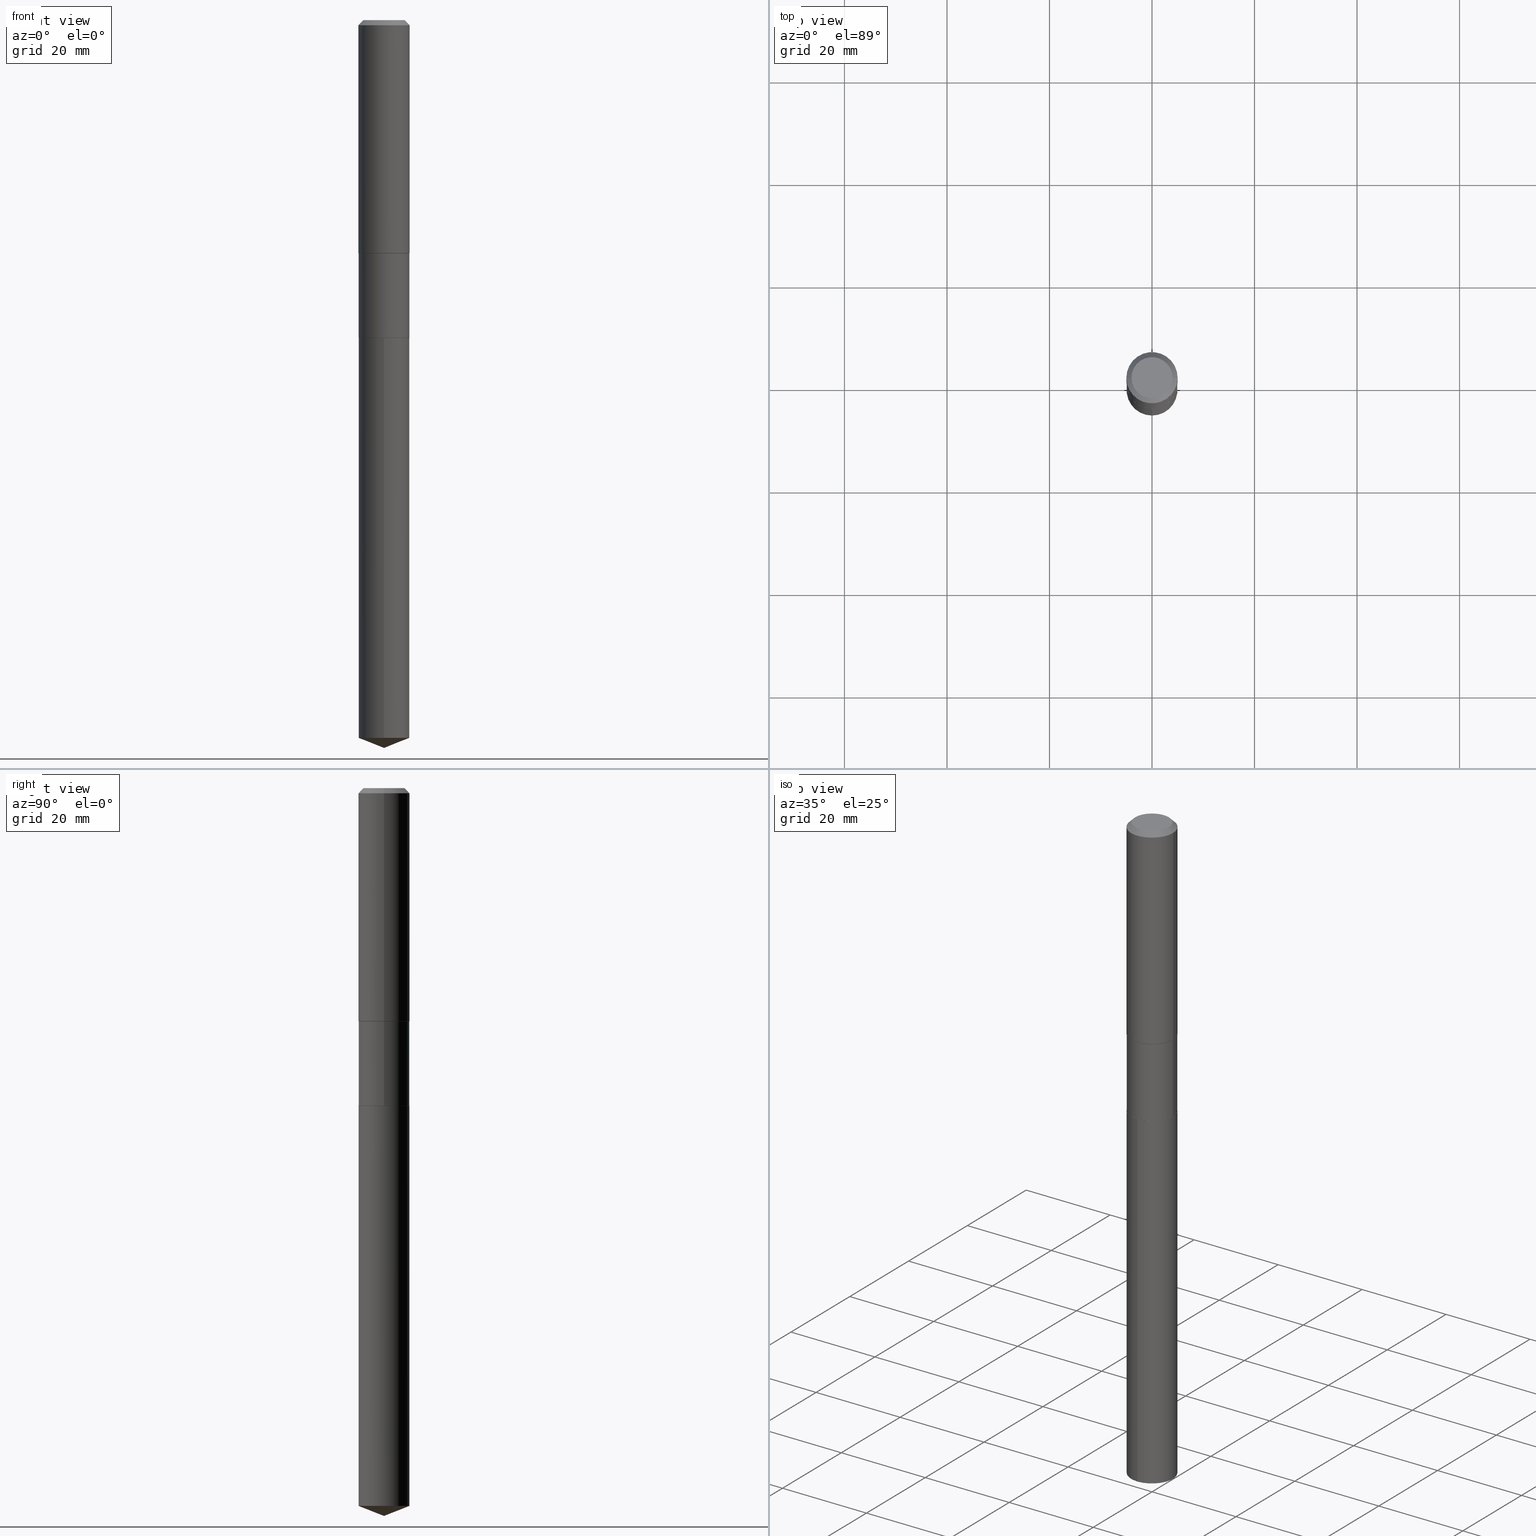
[diagram: canonical four-view strip — front | top / right | iso, engineering-drawing reading convention]
A machine part, canonical four-view strip (front | top / right | iso — engineering-drawing reading convention). The complete STEP part file that produces these views, byte-faithful:
ISO-10303-21;
HEADER;
FILE_DESCRIPTION (( 'STEP AP203' ),
    '1' );
FILE_NAME ('66675.STEP',
    '2024-04-25T03:26:49',
    ( '' ),
    ( '' ),
    'SwSTEP 2.0',
    'SolidWorks 2023',
    '' );
FILE_SCHEMA (( 'CONFIG_CONTROL_DESIGN' ));
ENDSEC;

DATA;
#1 = CARTESIAN_POINT ( 'NONE',  ( 5.969144809017297917E-29, -8.522356799982231388E-15, -2.440899999999999181 ) ) ;
#2 = CARTESIAN_POINT ( 'NONE',  ( 5.969144809017297917E-29, -8.522356799982231388E-15, -2.440899999999999181 ) ) ;
#3 = AXIS2_PLACEMENT_3D ( 'NONE', #121, #6, #266 ) ;
#4 = DIRECTION ( 'NONE',  ( 1.000000000000000000, -6.982962677686265922E-15, 0.000000000000000000 ) ) ;
#5 = EDGE_CURVE ( 'NONE', #466, #269, #241, .T. ) ;
#6 = DIRECTION ( 'NONE',  ( -2.445468806185136597E-29, 3.491481338843145583E-15, 1.000000000000000000 ) ) ;
#7 = CALENDAR_DATE ( 2024, 24, 4 ) ;
#8 = DATE_TIME_ROLE ( 'classification_date' ) ;
#9 = CIRCLE ( 'NONE', #447, 0.1948999999999999899 ) ;
#10 = PLANE ( 'NONE',  #449 ) ;
#11 = CC_DESIGN_APPROVAL ( #65, ( #277 ) ) ;
#12 = ORIENTED_EDGE ( 'NONE', *, *, #86, .F. ) ;
#13 = EDGE_CURVE ( 'NONE', #390, #365, #26, .T. ) ;
#14 = VERTEX_POINT ( 'NONE', #322 ) ;
#15 = ORIENTED_EDGE ( 'NONE', *, *, #109, .F. ) ;
#16 = CARTESIAN_POINT ( 'NONE',  ( 0.1968500000000000250, -1.487948651171581601E-15, -0.03937000000000024508 ) ) ;
#17 = AXIS2_PLACEMENT_3D ( 'NONE', #1, #152, #259 ) ;
#18 = CIRCLE ( 'NONE', #189, 0.1948999999999999899 ) ;
#19 = APPROVAL_DATE_TIME ( #240, #254 ) ;
#20 = EDGE_CURVE ( 'NONE', #269, #271, #9, .T. ) ;
#21 = ORIENTED_EDGE ( 'NONE', *, *, #282, .F. ) ;
#22 = FACE_OUTER_BOUND ( 'NONE', #210, .T. ) ;
#23 = PRODUCT ( '66675', '66675', '', ( #434 ) ) ;
#24 = VERTEX_POINT ( 'NONE', #358 ) ;
#25 = ORIENTED_EDGE ( 'NONE', *, *, #476, .F. ) ;
#26 = CIRCLE ( 'NONE', #226, 0.1948999999999999067 ) ;
#27 = CARTESIAN_POINT ( 'NONE',  ( 5.967922074614205116E-29, -8.520611059312809095E-15, -2.440399999999999014 ) ) ;
#28 = APPLICATION_PROTOCOL_DEFINITION ( 'international standard', 'config_control_design', 1994, #182 ) ;
#29 = FACE_OUTER_BOUND ( 'NONE', #128, .T. ) ;
#30 = CARTESIAN_POINT ( 'NONE',  ( -9.427742298522567634E-47, 1.346031739168368355E-32, 3.855188123715870730E-18 ) ) ;
#31 = CLOSED_SHELL ( 'NONE', ( #218, #372, #311, #207, #331, #439, #124, #33, #62, #458, #470, #273 ) ) ;
#32 = LOCAL_TIME ( 23, 26, 49.00000000000000000, #177 ) ;
#33 = ADVANCED_FACE ( 'NONE', ( #139 ), #134, .T. ) ;
#34 = DIRECTION ( 'NONE',  ( -2.445468806185136597E-29, 3.491481338843145583E-15, 1.000000000000000000 ) ) ;
#35 = CYLINDRICAL_SURFACE ( 'NONE', #379, 0.1948999999999999344 ) ;
#36 = LINE ( 'NONE', #46, #316 ) ;
#37 = DIRECTION ( 'NONE',  ( 2.445428369358333409E-29, -3.491539246680648506E-15, -1.000000000000000000 ) ) ;
#38 = CARTESIAN_POINT ( 'NONE',  ( 4.381791006922526060E-29, -6.256036262939144736E-15, -1.791799999999999171 ) ) ;
#39 = DIRECTION ( 'NONE',  ( -2.445428369358333970E-29, 3.491539246680648506E-15, 1.000000000000000000 ) ) ;
#40 = AXIS2_PLACEMENT_3D ( 'NONE', #448, #371, #108 ) ;
#41 = VECTOR ( 'NONE', #454, 39.37007874015748143 ) ;
#42 = FACE_OUTER_BOUND ( 'NONE', #386, .T. ) ;
#43 = ORIENTED_EDGE ( 'NONE', *, *, #394, .F. ) ;
#44 = APPROVAL_ROLE ( '' ) ;
#45 = EDGE_LOOP ( 'NONE', ( #279, #87, #43, #314 ) ) ;
#46 = CARTESIAN_POINT ( 'NONE',  ( 0.1948999999999999344, -1.360979425881052894E-15, 9.503668536026277414E-30 ) ) ;
#47 = CC_DESIGN_PERSON_AND_ORGANIZATION_ASSIGNMENT ( #395, #203, ( #286 ) ) ;
#48 = ORIENTED_EDGE ( 'NONE', *, *, #483, .F. ) ;
#49 = VECTOR ( 'NONE', #415, 39.37007874015748143 ) ;
#50 = LENGTH_MEASURE_WITH_UNIT ( LENGTH_MEASURE( 0.02539999999999999897 ), #401 );
#51 = EDGE_LOOP ( 'NONE', ( #346, #93, #25, #468 ) ) ;
#52 = EDGE_LOOP ( 'NONE', ( #381, #55 ) ) ;
#53 = DIRECTION ( 'NONE',  ( 6.611014441532067378E-15, 0.9304175679820272382, 0.3665012267242900301 ) ) ;
#54 = ADVANCED_FACE ( 'NONE', ( #435 ), #404, .T. ) ;
#55 = ORIENTED_EDGE ( 'NONE', *, *, #109, .T. ) ;
#56 = CIRCLE ( 'NONE', #480, 0.1948999999999999899 ) ;
#57 = AXIS2_PLACEMENT_3D ( 'NONE', #349, #161, #202 ) ;
#58 = AXIS2_PLACEMENT_3D ( 'NONE', #304, #452, #111 ) ;
#59 = APPROVAL_STATUS ( 'not_yet_approved' ) ;
#60 = ORIENTED_EDGE ( 'NONE', *, *, #410, .F. ) ;
#61 = DIRECTION ( 'NONE',  ( -2.445468806185136597E-29, 3.491481338843145583E-15, 1.000000000000000000 ) ) ;
#62 = ADVANCED_FACE ( 'NONE', ( #287 ), #136, .T. ) ;
#63 = VERTEX_POINT ( 'NONE', #484 ) ;
#64 = DIRECTION ( 'NONE',  ( 1.000000000000000000, -6.982962677686267499E-15, 0.000000000000000000 ) ) ;
#65 = APPROVAL ( #197, 'UNSPECIFIED' ) ;
#66 = VECTOR ( 'NONE', #408, 39.37007874015748143 ) ;
#67 = CC_DESIGN_APPROVAL ( #362, ( #368 ) ) ;
#68 = CARTESIAN_POINT ( 'NONE',  ( 1.384847791996570086E-15, 0.1948999999999807553, -5.513726848302648698 ) ) ;
#69 = CARTESIAN_POINT ( 'NONE',  ( -0.1948999999999999899, -6.003475869129541133E-15, -2.440399999999999014 ) ) ;
#70 = UNCERTAINTY_MEASURE_WITH_UNIT (LENGTH_MEASURE( 1.000000000000000082E-05 ), #126, 'distance_accuracy_value', 'NONE');
#71 = FACE_OUTER_BOUND ( 'NONE', #196, .T. ) ;
#72 = DIRECTION ( 'NONE',  ( -2.445468806185136597E-29, 3.491481338843145583E-15, 1.000000000000000000 ) ) ;
#73 = LINE ( 'NONE', #457, #41 ) ;
#74 = LINE ( 'NONE', #339, #115 ) ;
#75 = DIRECTION ( 'NONE',  ( -6.982962677686266711E-15, -1.000000000000000000, 2.803332984776052637E-15 ) ) ;
#76 = EDGE_CURVE ( 'NONE', #365, #390, #298, .T. ) ;
#77 = DIRECTION ( 'NONE',  ( -2.445468806185136877E-29, 3.491481338843145188E-15, 1.000000000000000000 ) ) ;
#78 = CARTESIAN_POINT ( 'NONE',  ( 0.1943999999999999895, -9.879844744524441472E-15, -2.440899999999999181 ) ) ;
#79 = CARTESIAN_POINT ( 'NONE',  ( 5.969144809017297917E-29, -8.522356799982231388E-15, -2.440899999999999181 ) ) ;
#80 = VECTOR ( 'NONE', #487, 39.37007874015748143 ) ;
#81 = VERTEX_POINT ( 'NONE', #68 ) ;
#82 = FACE_OUTER_BOUND ( 'NONE', #353, .T. ) ;
#83 = ORIENTED_EDGE ( 'NONE', *, *, #191, .F. ) ;
#84 = CARTESIAN_POINT ( 'NONE',  ( 5.969144809017297917E-29, -8.522356799982231388E-15, -2.440899999999999181 ) ) ;
#85 = SHAPE_DEFINITION_REPRESENTATION ( #94, #278 ) ;
#86 = EDGE_CURVE ( 'NONE', #248, #63, #255, .T. ) ;
#87 = ORIENTED_EDGE ( 'NONE', *, *, #345, .T. ) ;
#88 = PERSON_AND_ORGANIZATION ( #344, #143 ) ;
#89 = ORIENTED_EDGE ( 'NONE', *, *, #138, .F. ) ;
#90 = AXIS2_PLACEMENT_3D ( 'NONE', #285, #443, #211 ) ;
#91 = DIRECTION ( 'NONE',  ( -2.445428369358333970E-29, 3.491539246680648506E-15, 1.000000000000000000 ) ) ;
#92 = PERSON_AND_ORGANIZATION_ROLE ( 'design_supplier' ) ;
#93 = ORIENTED_EDGE ( 'NONE', *, *, #410, .T. ) ;
#94 = PRODUCT_DEFINITION_SHAPE ( 'NONE', 'NONE',  #286 ) ;
#95 = ORIENTED_EDGE ( 'NONE', *, *, #431, .F. ) ;
#96 = PERSON_AND_ORGANIZATION ( #344, #143 ) ;
#97 = EDGE_LOOP ( 'NONE', ( #105, #120, #127, #15 ) ) ;
#98 = AXIS2_PLACEMENT_3D ( 'NONE', #433, #233, #387 ) ;
#99 = LOCAL_TIME ( 23, 26, 49.00000000000000000, #357 ) ;
#100 = ORIENTED_EDGE ( 'NONE', *, *, #5, .F. ) ;
#101 = PERSON_AND_ORGANIZATION ( #344, #143 ) ;
#102 = CC_DESIGN_PERSON_AND_ORGANIZATION_ASSIGNMENT ( #305, #92, ( #368 ) ) ;
#103 = CARTESIAN_POINT ( 'NONE',  ( 9.627810689950943645E-31, -1.374596203102555315E-16, -0.03937000000000024508 ) ) ;
#104 = CALENDAR_DATE ( 2024, 24, 4 ) ;
#105 = ORIENTED_EDGE ( 'NONE', *, *, #317, .F. ) ;
#106 = CONICAL_SURFACE ( 'NONE', #234, 0.1943999999999999895, 0.7853981633975507526 ) ;
#107 = VECTOR ( 'NONE', #77, 39.37007874015748143 ) ;
#108 = DIRECTION ( 'NONE',  ( 1.000000000000000000, -6.982962677686265922E-15, 4.876223630392693006E-29 ) ) ;
#109 = EDGE_CURVE ( 'NONE', #319, #208, #56, .T. ) ;
#110 = LINE ( 'NONE', #485, #66 ) ;
#111 = DIRECTION ( 'NONE',  ( -1.000000000000000000, 6.982962677686265922E-15, -4.876176775795935793E-29 ) ) ;
#112 = FACE_OUTER_BOUND ( 'NONE', #51, .T. ) ;
#113 = CARTESIAN_POINT ( 'NONE',  ( -0.1948999999999999067, -4.871188470942710531E-15, -1.791799999999999171 ) ) ;
#114 = CONICAL_SURFACE ( 'NONE', #388, 0.1943999999999999895, 0.7853981633975507526 ) ;
#115 = VECTOR ( 'NONE', #149, 39.37007874015748854 ) ;
#116 = DIRECTION ( 'NONE',  ( -2.445428369358333970E-29, 3.491539246680648506E-15, 1.000000000000000000 ) ) ;
#117 = CYLINDRICAL_SURFACE ( 'NONE', #268, 0.1948999999999999344 ) ;
#118 = DIRECTION ( 'NONE',  ( -2.445468806185136597E-29, 3.491481338843145583E-15, 1.000000000000000000 ) ) ;
#119 = CARTESIAN_POINT ( 'NONE',  ( 9.627810689950943645E-31, -1.374596203102555315E-16, -0.03937000000000024508 ) ) ;
#120 = ORIENTED_EDGE ( 'NONE', *, *, #300, .T. ) ;
#121 = CARTESIAN_POINT ( 'NONE',  ( 5.967922074614205116E-29, -8.520611059312809095E-15, -2.440399999999999014 ) ) ;
#122 = CIRCLE ( 'NONE', #3, 0.1948999999999999899 ) ;
#123 = ORIENTED_EDGE ( 'NONE', *, *, #282, .T. ) ;
#124 = ADVANCED_FACE ( 'NONE', ( #451 ), #250, .T. ) ;
#125 = ORIENTED_EDGE ( 'NONE', *, *, #247, .T. ) ;
#126 =( CONVERSION_BASED_UNIT ( 'INCH', #50 ) LENGTH_UNIT ( ) NAMED_UNIT ( #330 ) );
#127 = ORIENTED_EDGE ( 'NONE', *, *, #141, .T. ) ;
#128 = EDGE_LOOP ( 'NONE', ( #419, #160, #95, #405 ) ) ;
#129 = DIRECTION ( 'NONE',  ( -2.438088387897960049E-29, 3.491481338843145188E-15, 1.000000000000000000 ) ) ;
#130 = DIRECTION ( 'NONE',  ( -2.445468806185136597E-29, 3.491481338843145583E-15, 1.000000000000000000 ) ) ;
#131 = DATE_TIME_ROLE ( 'creation_date' ) ;
#132 = ORIENTED_EDGE ( 'NONE', *, *, #383, .T. ) ;
#133 = ADVANCED_FACE ( 'NONE', ( #71 ), #252, .T. ) ;
#134 = CYLINDRICAL_SURFACE ( 'NONE', #151, 0.1968500000000001082 ) ;
#135 = CARTESIAN_POINT ( 'NONE',  ( 0.1968500000000001082, -1.374596203102542397E-15, 9.598753983154305062E-30 ) ) ;
#136 = CONICAL_SURFACE ( 'NONE', #195, 0.1968500000000000250, 0.7853981633974452814 ) ;
#137 = APPROVAL_PERSON_ORGANIZATION ( #88, #65, #157 ) ;
#138 = EDGE_CURVE ( 'NONE', #208, #319, #429, .T. ) ;
#139 = FACE_OUTER_BOUND ( 'NONE', #354, .T. ) ;
#140 = CARTESIAN_POINT ( 'NONE',  ( 4.381791006922526060E-29, -6.256036262939144736E-15, -1.791799999999999171 ) ) ;
#141 = EDGE_CURVE ( 'NONE', #201, #208, #110, .T. ) ;
#142 = CARTESIAN_POINT ( 'NONE',  ( 0.1948999999999999067, -7.617015688820197828E-15, -1.791799999999999171 ) ) ;
#143 = ORGANIZATION ( 'UNSPECIFIED', 'UNSPECIFIED', '' ) ;
#144 = CARTESIAN_POINT ( 'NONE',  ( -0.1968500000000000250, 1.237136582792286225E-15, -0.03937000000000024508 ) ) ;
#145 = CARTESIAN_POINT ( 'NONE',  ( -0.1948999999999999067, -6.003475869129541922E-15, -1.791799999999999171 ) ) ;
#146 = LINE ( 'NONE', #142, #412 ) ;
#147 = DIRECTION ( 'NONE',  ( -2.445468806185136597E-29, 3.491481338843145583E-15, 1.000000000000000000 ) ) ;
#148 = CARTESIAN_POINT ( 'NONE',  ( 5.969144809017297917E-29, -8.522356799982231388E-15, -2.440899999999999181 ) ) ;
#149 = DIRECTION ( 'NONE',  ( -6.497071151882121414E-15, -0.9304175679820246847, 0.3665012267242966360 ) ) ;
#150 = CC_DESIGN_PERSON_AND_ORGANIZATION_ASSIGNMENT ( #101, #209, ( #23 ) ) ;
#151 = AXIS2_PLACEMENT_3D ( 'NONE', #284, #327, #400 ) ;
#152 = DIRECTION ( 'NONE',  ( -2.445428369358333970E-29, 3.491539246680648506E-15, 1.000000000000000000 ) ) ;
#153 = DIRECTION ( 'NONE',  ( 1.000000000000000000, -6.982962677686266711E-15, 4.876176775795936914E-29 ) ) ;
#154 = DATE_AND_TIME ( #7, #159 ) ;
#155 = PLANE ( 'NONE',  #58 ) ;
#156 = ORIENTED_EDGE ( 'NONE', *, *, #191, .T. ) ;
#157 = APPROVAL_ROLE ( '' ) ;
#158 = VECTOR ( 'NONE', #398, 39.37007874015748143 ) ;
#159 = LOCAL_TIME ( 23, 26, 49.00000000000000000, #276 ) ;
#160 = ORIENTED_EDGE ( 'NONE', *, *, #5, .T. ) ;
#161 = DIRECTION ( 'NONE',  ( -2.445468806185136597E-29, 3.491481338843145583E-15, 1.000000000000000000 ) ) ;
#162 = ORIENTED_EDGE ( 'NONE', *, *, #445, .T. ) ;
#163 = DIRECTION ( 'NONE',  ( 0.7071067811865453523, -7.319954787623248157E-15, -0.7071067811865496822 ) ) ;
#164 = EDGE_CURVE ( 'NONE', #24, #271, #417, .T. ) ;
#165 = EDGE_LOOP ( 'NONE', ( #60, #303, #281, #426 ) ) ;
#166 = FACE_OUTER_BOUND ( 'NONE', #246, .T. ) ;
#167 = ORIENTED_EDGE ( 'NONE', *, *, #300, .F. ) ;
#168 = FACE_OUTER_BOUND ( 'NONE', #396, .T. ) ;
#169 = VECTOR ( 'NONE', #163, 39.37007874015748143 ) ;
#170 = CALENDAR_DATE ( 2024, 24, 4 ) ;
#171 = EDGE_LOOP ( 'NONE', ( #231, #309, #348, #132 ) ) ;
#172 = DIRECTION ( 'NONE',  ( -2.445468806185136597E-29, 3.491481338843145583E-15, 1.000000000000000000 ) ) ;
#173 = APPROVAL_ROLE ( '' ) ;
#174 = ORIENTED_EDGE ( 'NONE', *, *, #467, .T. ) ;
#175 = CIRCLE ( 'NONE', #40, 0.1574800000000000089 ) ;
#176 = APPROVAL_PERSON_ORGANIZATION ( #96, #362, #44 ) ;
#177 = COORDINATED_UNIVERSAL_TIME_OFFSET ( 5, 0, .BEHIND. ) ;
#178 = DIRECTION ( 'NONE',  ( -1.000000000000000000, 6.982962677686265922E-15, 0.000000000000000000 ) ) ;
#179 = DIRECTION ( 'NONE',  ( -2.445468806185136877E-29, 3.491481338843145188E-15, 1.000000000000000000 ) ) ;
#180 = DIRECTION ( 'NONE',  ( 1.000000000000000000, -6.982962677686265922E-15, 0.000000000000000000 ) ) ;
#181 = DIRECTION ( 'NONE',  ( -6.982962677686266711E-15, -1.000000000000000000, 2.803332984776052637E-15 ) ) ;
#182 = APPLICATION_CONTEXT ( 'configuration controlled 3d designs of mechanical parts and assemblies' ) ;
#183 = DIRECTION ( 'NONE',  ( 1.000000000000000000, -6.982962677686267499E-15, 0.000000000000000000 ) ) ;
#184 = PLANE ( 'NONE',  #333 ) ;
#185 = CARTESIAN_POINT ( 'NONE',  ( 1.348352275798255505E-28, -1.925125233908493571E-14, -5.513726848302647809 ) ) ;
#186 = CC_DESIGN_PERSON_AND_ORGANIZATION_ASSIGNMENT ( #430, #227, ( #368 ) ) ;
#187 = CARTESIAN_POINT ( 'NONE',  ( 9.627810689950943645E-31, -1.374596203102555315E-16, -0.03937000000000024508 ) ) ;
#188 = AXIS2_PLACEMENT_3D ( 'NONE', #38, #34, #183 ) ;
#189 = AXIS2_PLACEMENT_3D ( 'NONE', #185, #256, #413 ) ;
#190 = DIRECTION ( 'NONE',  ( 2.445468806185136597E-29, -3.491481338843145583E-15, -1.000000000000000000 ) ) ;
#191 = EDGE_CURVE ( 'NONE', #471, #248, #324, .T. ) ;
#192 = ORIENTED_EDGE ( 'NONE', *, *, #383, .F. ) ;
#193 = COORDINATED_UNIVERSAL_TIME_OFFSET ( 5, 0, .BEHIND. ) ;
#194 = DIRECTION ( 'NONE',  ( 1.000000000000000000, -6.982962677686267499E-15, 0.000000000000000000 ) ) ;
#195 = AXIS2_PLACEMENT_3D ( 'NONE', #103, #364, #178 ) ;
#196 = EDGE_LOOP ( 'NONE', ( #162, #232, #89, #320 ) ) ;
#197 = APPROVAL_STATUS ( 'not_yet_approved' ) ;
#198 = EDGE_LOOP ( 'NONE', ( #83, #174, #459, #12 ) ) ;
#199 = DIRECTION ( 'NONE',  ( 1.000000000000000000, -6.982962677686265922E-15, 4.876176775795935793E-29 ) ) ;
#200 = PRODUCT_RELATED_PRODUCT_CATEGORY ( 'detail', '', ( #23 ) ) ;
#201 = VERTEX_POINT ( 'NONE', #215 ) ;
#202 = DIRECTION ( 'NONE',  ( 1.000000000000000000, -6.982962677686267499E-15, 0.000000000000000000 ) ) ;
#203 = PERSON_AND_ORGANIZATION_ROLE ( 'creator' ) ;
#204 = ORIENTED_EDGE ( 'NONE', *, *, #431, .T. ) ;
#205 = AXIS2_PLACEMENT_3D ( 'NONE', #140, #446, #249 ) ;
#206 = CIRCLE ( 'NONE', #422, 0.1943999999999999895 ) ;
#207 = ADVANCED_FACE ( 'NONE', ( #112 ), #332, .T. ) ;
#208 = VERTEX_POINT ( 'NONE', #340 ) ;
#209 = PERSON_AND_ORGANIZATION_ROLE ( 'design_owner' ) ;
#210 = EDGE_LOOP ( 'NONE', ( #100, #123, #424, #275 ) ) ;
#211 = DIRECTION ( 'NONE',  ( -6.982962677686265133E-15, -1.000000000000000000, 3.498627837349999095E-15 ) ) ;
#212 = CIRCLE ( 'NONE', #228, 0.1968500000000000250 ) ;
#213 = EDGE_CURVE ( 'NONE', #14, #239, #378, .T. ) ;
#214 = DIRECTION ( 'NONE',  ( -2.445468806185136877E-29, 3.491481338843145188E-15, 1.000000000000000000 ) ) ;
#215 = CARTESIAN_POINT ( 'NONE',  ( -1.360979425880918394E-15, -0.1949000000000192523, -5.513726848302646921 ) ) ;
#216 = FACE_OUTER_BOUND ( 'NONE', #351, .T. ) ;
#217 = LOCAL_TIME ( 23, 26, 49.00000000000000000, #308 ) ;
#218 = ADVANCED_FACE ( 'NONE', ( #29 ), #114, .T. ) ;
#219 = CARTESIAN_POINT ( 'NONE',  ( 5.969144809017297917E-29, -8.522356799982231388E-15, -2.440899999999999181 ) ) ;
#220 = DIRECTION ( 'NONE',  ( -2.445468806185136597E-29, 3.491481338843145583E-15, 1.000000000000000000 ) ) ;
#221 = DIRECTION ( 'NONE',  ( 1.000000000000000000, -6.982962677686265922E-15, 4.876223630392693006E-29 ) ) ;
#222 = CARTESIAN_POINT ( 'NONE',  ( 0.1968500000000000250, -1.512055823412797189E-15, -0.03937000000000024508 ) ) ;
#223 = DIRECTION ( 'NONE',  ( -2.445468806185136597E-29, 3.491481338843145583E-15, 1.000000000000000000 ) ) ;
#224 = CARTESIAN_POINT ( 'NONE',  ( 0.1948999999999999067, -7.617015688820197828E-15, -1.791799999999999171 ) ) ;
#225 = EDGE_CURVE ( 'NONE', #365, #239, #146, .T. ) ;
#226 = AXIS2_PLACEMENT_3D ( 'NONE', #473, #172, #64 ) ;
#227 = PERSON_AND_ORGANIZATION_ROLE ( 'creator' ) ;
#228 = AXIS2_PLACEMENT_3D ( 'NONE', #187, #341, #4 ) ;
#229 = ORIENTED_EDGE ( 'NONE', *, *, #213, .T. ) ;
#230 = DIRECTION ( 'NONE',  ( 1.000000000000000000, -6.982962677686266711E-15, 4.876176775795936914E-29 ) ) ;
#231 = ORIENTED_EDGE ( 'NONE', *, *, #467, .F. ) ;
#232 = ORIENTED_EDGE ( 'NONE', *, *, #317, .T. ) ;
#233 = DIRECTION ( 'NONE',  ( -2.445428369358333970E-29, 3.491539246680648506E-15, 1.000000000000000000 ) ) ;
#234 = AXIS2_PLACEMENT_3D ( 'NONE', #84, #280, #194 ) ;
#235 = CC_DESIGN_SECURITY_CLASSIFICATION ( #277, ( #368 ) ) ;
#236 = CC_DESIGN_DATE_AND_TIME_ASSIGNMENT ( #427, #8, ( #277 ) ) ;
#237 = ORIENTED_EDGE ( 'NONE', *, *, #445, .F. ) ;
#238 = LINE ( 'NONE', #393, #440 ) ;
#239 = VERTEX_POINT ( 'NONE', #338 ) ;
#240 = DATE_AND_TIME ( #104, #32 ) ;
#241 = LINE ( 'NONE', #243, #158 ) ;
#242 = CONICAL_SURFACE ( 'NONE', #306, 99.94676754584011746, 1.195550537616119957 ) ;
#243 = CARTESIAN_POINT ( 'NONE',  ( -0.1943999999999999895, -7.141061721664595715E-15, -2.440899999999999181 ) ) ;
#244 = APPROVAL_PERSON_ORGANIZATION ( #444, #254, #173 ) ;
#245 = DIRECTION ( 'NONE',  ( 1.000000000000000000, -6.982962677686267499E-15, 0.000000000000000000 ) ) ;
#246 = EDGE_LOOP ( 'NONE', ( #482, #428, #237 ) ) ;
#247 = EDGE_CURVE ( 'NONE', #248, #471, #175, .T. ) ;
#248 = VERTEX_POINT ( 'NONE', #453 ) ;
#249 = DIRECTION ( 'NONE',  ( 1.000000000000000000, -6.982962677686267499E-15, 0.000000000000000000 ) ) ;
#250 = CONICAL_SURFACE ( 'NONE', #421, 0.1948999999999999067, 0.7853981633974658205 ) ;
#251 = EDGE_CURVE ( 'NONE', #271, #365, #36, .T. ) ;
#252 = CYLINDRICAL_SURFACE ( 'NONE', #363, 0.1948999999999999899 ) ;
#253 = CARTESIAN_POINT ( 'NONE',  ( -0.1943999999999999895, -7.138412494490485303E-15, -2.440899999999999181 ) ) ;
#254 = APPROVAL ( #59, 'UNSPECIFIED' ) ;
#255 = LINE ( 'NONE', #144, #367 ) ;
#256 = DIRECTION ( 'NONE',  ( -2.445428369358333970E-29, 3.491539246680648506E-15, 1.000000000000000000 ) ) ;
#257 = AXIS2_PLACEMENT_3D ( 'NONE', #416, #190, #260 ) ;
#258 = MANIFOLD_SOLID_BREP ( 'Body-Move/Copy2[2]', #31 ) ;
#259 = DIRECTION ( 'NONE',  ( -6.982962677686266711E-15, -1.000000000000000000, 2.803332984776052637E-15 ) ) ;
#260 = DIRECTION ( 'NONE',  ( -1.000000000000000000, 6.982962677686265922E-15, 0.000000000000000000 ) ) ;
#261 = MANIFOLD_SOLID_BREP ( 'Body-Move/Copy2[1]', #397 ) ;
#262 = DIRECTION ( 'NONE',  ( -0.7071067811865453523, 2.468850131082234184E-15, -0.7071067811865496822 ) ) ;
#263 = DIRECTION ( 'NONE',  ( 1.000000000000000000, -6.982962677686265922E-15, 0.000000000000000000 ) ) ;
#264 = SECURITY_CLASSIFICATION_LEVEL ( 'unclassified' ) ;
#265 = ORIENTED_EDGE ( 'NONE', *, *, #13, .F. ) ;
#266 = DIRECTION ( 'NONE',  ( 1.000000000000000000, -6.982962677686269866E-15, 0.000000000000000000 ) ) ;
#267 = APPROVAL_DATE_TIME ( #154, #362 ) ;
#268 = AXIS2_PLACEMENT_3D ( 'NONE', #369, #147, #153 ) ;
#269 = VERTEX_POINT ( 'NONE', #69 ) ;
#270 = APPROVAL_DATE_TIME ( #465, #65 ) ;
#271 = VERTEX_POINT ( 'NONE', #359 ) ;
#272 = DIRECTION ( 'NONE',  ( -6.982962677686265133E-15, -1.000000000000000000, 3.498627837349999095E-15 ) ) ;
#273 = ADVANCED_FACE ( 'NONE', ( #22 ), #106, .T. ) ;
#274 =( NAMED_UNIT ( * ) PLANE_ANGLE_UNIT ( ) SI_UNIT ( $, .RADIAN. ) );
#275 = ORIENTED_EDGE ( 'NONE', *, *, #20, .F. ) ;
#276 = COORDINATED_UNIVERSAL_TIME_OFFSET ( 5, 0, .BEHIND. ) ;
#277 = SECURITY_CLASSIFICATION ( '', '', #264 ) ;
#278 = ADVANCED_BREP_SHAPE_REPRESENTATION ( '66675', ( #261, #258, #464 ), #486 ) ;
#279 = ORIENTED_EDGE ( 'NONE', *, *, #476, .T. ) ;
#280 = DIRECTION ( 'NONE',  ( -2.445468806185136597E-29, 3.491481338843145583E-15, 1.000000000000000000 ) ) ;
#281 = ORIENTED_EDGE ( 'NONE', *, *, #225, .T. ) ;
#282 = EDGE_CURVE ( 'NONE', #466, #24, #356, .T. ) ;
#283 = VERTEX_POINT ( 'NONE', #313 ) ;
#284 = CARTESIAN_POINT ( 'NONE',  ( 0.000000000000000000, 0.000000000000000000, 0.000000000000000000 ) ) ;
#285 = CARTESIAN_POINT ( 'NONE',  ( -8.260544145390422756E-28, 1.179428662548396618E-13, 33.77957874015748274 ) ) ;
#286 = PRODUCT_DEFINITION ( 'UNKNOWN', '', #368, #370 ) ;
#287 = FACE_OUTER_BOUND ( 'NONE', #171, .T. ) ;
#288 = DIRECTION ( 'NONE',  ( 0.7071067811865598962, -2.468850131082386434E-15, 0.7071067811865351382 ) ) ;
#289 = AXIS2_PLACEMENT_3D ( 'NONE', #336, #223, #488 ) ;
#290 = CYLINDRICAL_SURFACE ( 'NONE', #481, 0.1968500000000001082 ) ;
#291 = CIRCLE ( 'NONE', #318, 0.1968500000000000250 ) ;
#292 = DIRECTION ( 'NONE',  ( -2.445428369358333970E-29, 3.491539246680648506E-15, 1.000000000000000000 ) ) ;
#293 = DIRECTION ( 'NONE',  ( -2.445468806185136597E-29, 3.491481338843145583E-15, 1.000000000000000000 ) ) ;
#294 = ADVANCED_FACE ( 'NONE', ( #166 ), #242, .T. ) ;
#295 = CARTESIAN_POINT ( 'NONE',  ( 4.381791006922526060E-29, -6.256036262939144736E-15, -1.791799999999999171 ) ) ;
#296 = FACE_OUTER_BOUND ( 'NONE', #198, .T. ) ;
#297 = DIRECTION ( 'NONE',  ( 6.982962677686265922E-15, 1.000000000000000000, -3.491539246680648506E-15 ) ) ;
#298 = CIRCLE ( 'NONE', #205, 0.1948999999999999067 ) ;
#299 = CIRCLE ( 'NONE', #335, 0.1968500000000002192 ) ;
#300 = EDGE_CURVE ( 'NONE', #81, #201, #463, .T. ) ;
#301 = CYLINDRICAL_SURFACE ( 'NONE', #389, 0.1948999999999999899 ) ;
#302 = EDGE_CURVE ( 'NONE', #283, #81, #238, .T. ) ;
#303 = ORIENTED_EDGE ( 'NONE', *, *, #13, .T. ) ;
#304 = CARTESIAN_POINT ( 'NONE',  ( -4.713871149261283817E-47, 6.730158695841841775E-33, 1.927594061857935365E-18 ) ) ;
#305 = PERSON_AND_ORGANIZATION ( #344, #143 ) ;
#306 = AXIS2_PLACEMENT_3D ( 'NONE', #310, #91, #272 ) ;
#307 = CC_DESIGN_APPROVAL ( #254, ( #286 ) ) ;
#308 = COORDINATED_UNIVERSAL_TIME_OFFSET ( 5, 0, .BEHIND. ) ;
#309 = ORIENTED_EDGE ( 'NONE', *, *, #247, .F. ) ;
#310 = CARTESIAN_POINT ( 'NONE',  ( -8.260544145390422756E-28, 1.179428662548396618E-13, 33.77957874015748274 ) ) ;
#311 = ADVANCED_FACE ( 'NONE', ( #355 ), #290, .T. ) ;
#312 = ORIENTED_EDGE ( 'NONE', *, *, #20, .T. ) ;
#313 = CARTESIAN_POINT ( 'NONE',  ( 1.367116729889776270E-28, -1.951945015856816032E-14, -5.590499999999999581 ) ) ;
#314 = ORIENTED_EDGE ( 'NONE', *, *, #490, .F. ) ;
#315 = CARTESIAN_POINT ( 'NONE',  ( 0.1574800000000000089, -1.284169937930321189E-15, 3.855188123724205385E-18 ) ) ;
#316 = VECTOR ( 'NONE', #214, 39.37007874015748143 ) ;
#317 = EDGE_CURVE ( 'NONE', #81, #319, #343, .T. ) ;
#318 = AXIS2_PLACEMENT_3D ( 'NONE', #119, #334, #263 ) ;
#319 = VERTEX_POINT ( 'NONE', #337 ) ;
#320 = ORIENTED_EDGE ( 'NONE', *, *, #141, .F. ) ;
#321 = DIRECTION ( 'NONE',  ( 0.000000000000000000, 0.000000000000000000, 1.000000000000000000 ) ) ;
#322 = CARTESIAN_POINT ( 'NONE',  ( -0.1968500000000002192, -4.850524498984641901E-15, -1.789849999999998831 ) ) ;
#323 = ADVANCED_FACE ( 'NONE', ( #489 ), #184, .F. ) ;
#324 = CIRCLE ( 'NONE', #342, 0.1574800000000000089 ) ;
#325 = EDGE_LOOP ( 'NONE', ( #432, #475, #167 ) ) ;
#326 = CC_DESIGN_DATE_AND_TIME_ASSIGNMENT ( #474, #131, ( #286 ) ) ;
#327 = DIRECTION ( 'NONE',  ( -2.445468806185136597E-29, 3.491481338843145583E-15, 1.000000000000000000 ) ) ;
#328 = DIRECTION ( 'NONE',  ( 1.000000000000000000, -6.982962677686267499E-15, 0.000000000000000000 ) ) ;
#329 = CARTESIAN_POINT ( 'NONE',  ( 5.969144809017297917E-29, -8.522356799982231388E-15, -2.440899999999999181 ) ) ;
#330 = DIMENSIONAL_EXPONENTS ( 1.000000000000000000, 0.000000000000000000, 0.000000000000000000, 0.000000000000000000, 0.000000000000000000, 0.000000000000000000, 0.000000000000000000 ) ;
#331 = ADVANCED_FACE ( 'NONE', ( #216 ), #117, .T. ) ;
#332 = CONICAL_SURFACE ( 'NONE', #188, 0.1948999999999999067, 0.7853981633974658205 ) ;
#333 = AXIS2_PLACEMENT_3D ( 'NONE', #2, #37, #297 ) ;
#334 = DIRECTION ( 'NONE',  ( -2.445468806185136597E-29, 3.491481338843145583E-15, 1.000000000000000000 ) ) ;
#335 = AXIS2_PLACEMENT_3D ( 'NONE', #438, #61, #180 ) ;
#336 = CARTESIAN_POINT ( 'NONE',  ( 4.377022342750463686E-29, -6.249227874328400478E-15, -1.789849999999998831 ) ) ;
#337 = CARTESIAN_POINT ( 'NONE',  ( 1.384847791996570283E-15, 0.1948999999999914412, -2.440899999999999626 ) ) ;
#338 = CARTESIAN_POINT ( 'NONE',  ( 0.1968500000000002192, -7.623824077430942875E-15, -1.789849999999998831 ) ) ;
#339 = CARTESIAN_POINT ( 'NONE',  ( 1.367116729889776494E-28, -1.951945015856816032E-14, -5.590499999999999581 ) ) ;
#340 = CARTESIAN_POINT ( 'NONE',  ( -1.360979425880993533E-15, -0.1949000000000085109, -2.440899999999998737 ) ) ;
#341 = DIRECTION ( 'NONE',  ( -2.445468806185136597E-29, 3.491481338843145583E-15, 1.000000000000000000 ) ) ;
#342 = AXIS2_PLACEMENT_3D ( 'NONE', #30, #72, #221 ) ;
#343 = LINE ( 'NONE', #382, #406 ) ;
#344 = PERSON ( 'UNSPECIFIED', 'UNSPECIFIED', 'UNSPECIFIED', ('UNSPECIFIED'), ('UNSPECIFIED'), ('UNSPECIFIED') ) ;
#345 = EDGE_CURVE ( 'NONE', #14, #63, #420, .T. ) ;
#346 = ORIENTED_EDGE ( 'NONE', *, *, #76, .T. ) ;
#347 = CALENDAR_DATE ( 2024, 24, 4 ) ;
#348 = ORIENTED_EDGE ( 'NONE', *, *, #86, .T. ) ;
#349 = CARTESIAN_POINT ( 'NONE',  ( 5.969144809017297917E-29, -8.522356799982231388E-15, -2.440899999999999181 ) ) ;
#350 = VECTOR ( 'NONE', #179, 39.37007874015748143 ) ;
#351 = EDGE_LOOP ( 'NONE', ( #204, #403, #392, #442 ) ) ;
#352 = APPROVAL_STATUS ( 'not_yet_approved' ) ;
#353 = EDGE_LOOP ( 'NONE', ( #384, #312, #437, #265 ) ) ;
#354 = EDGE_LOOP ( 'NONE', ( #360, #229, #462, #192 ) ) ;
#355 = FACE_OUTER_BOUND ( 'NONE', #45, .T. ) ;
#356 = CIRCLE ( 'NONE', #57, 0.1943999999999999895 ) ;
#357 = COORDINATED_UNIVERSAL_TIME_OFFSET ( 5, 0, .BEHIND. ) ;
#358 = CARTESIAN_POINT ( 'NONE',  ( 0.1943999999999999895, -9.879844744524441472E-15, -2.440899999999999181 ) ) ;
#359 = CARTESIAN_POINT ( 'NONE',  ( 0.1948999999999999899, -9.881590485193863765E-15, -2.440399999999999014 ) ) ;
#360 = ORIENTED_EDGE ( 'NONE', *, *, #345, .F. ) ;
#361 = VERTEX_POINT ( 'NONE', #222 ) ;
#362 = APPROVAL ( #352, 'UNSPECIFIED' ) ;
#363 = AXIS2_PLACEMENT_3D ( 'NONE', #366, #116, #75 ) ;
#364 = DIRECTION ( 'NONE',  ( 2.445468806185136597E-29, -3.491481338843145583E-15, -1.000000000000000000 ) ) ;
#365 = VERTEX_POINT ( 'NONE', #224 ) ;
#366 = CARTESIAN_POINT ( 'NONE',  ( 5.969144809017297917E-29, -8.522356799982231388E-15, -2.440899999999999181 ) ) ;
#367 = VECTOR ( 'NONE', #262, 39.37007874015748143 ) ;
#368 = PRODUCT_DEFINITION_FORMATION_WITH_SPECIFIED_SOURCE ( 'ANY', '', #23, .NOT_KNOWN. ) ;
#369 = CARTESIAN_POINT ( 'NONE',  ( 0.000000000000000000, 0.000000000000000000, 0.000000000000000000 ) ) ;
#370 = DESIGN_CONTEXT ( 'detailed design', #385, 'design' ) ;
#371 = DIRECTION ( 'NONE',  ( -2.445468806185136597E-29, 3.491481338843145583E-15, 1.000000000000000000 ) ) ;
#372 = ADVANCED_FACE ( 'NONE', ( #296 ), #472, .T. ) ;
#373 = DIRECTION ( 'NONE',  ( 1.000000000000000000, -6.982962677686266711E-15, 4.876176775795935793E-29 ) ) ;
#374 = DIRECTION ( 'NONE',  ( -6.982962677686266711E-15, -1.000000000000000000, 2.803332984776052637E-15 ) ) ;
#375 = FACE_OUTER_BOUND ( 'NONE', #97, .T. ) ;
#376 = ADVANCED_FACE ( 'NONE', ( #375 ), #301, .T. ) ;
#377 = CARTESIAN_POINT ( 'NONE',  ( 0.000000000000000000, 0.000000000000000000, 0.000000000000000000 ) ) ;
#378 = CIRCLE ( 'NONE', #289, 0.1968500000000002192 ) ;
#379 = AXIS2_PLACEMENT_3D ( 'NONE', #377, #293, #230 ) ;
#380 =( NAMED_UNIT ( * ) SI_UNIT ( $, .STERADIAN. ) SOLID_ANGLE_UNIT ( ) );
#381 = ORIENTED_EDGE ( 'NONE', *, *, #138, .T. ) ;
#382 = CARTESIAN_POINT ( 'NONE',  ( 1.384847791996494552E-15, 0.1948999999999914412, -2.440899999999999626 ) ) ;
#383 = EDGE_CURVE ( 'NONE', #63, #361, #212, .T. ) ;
#384 = ORIENTED_EDGE ( 'NONE', *, *, #391, .F. ) ;
#385 = APPLICATION_CONTEXT ( 'configuration controlled 3d designs of mechanical parts and assemblies' ) ;
#386 = EDGE_LOOP ( 'NONE', ( #125, #156 ) ) ;
#387 = DIRECTION ( 'NONE',  ( -6.982962677686266711E-15, -1.000000000000000000, 5.606665969552105274E-15 ) ) ;
#388 = AXIS2_PLACEMENT_3D ( 'NONE', #148, #411, #328 ) ;
#389 = AXIS2_PLACEMENT_3D ( 'NONE', #79, #39, #181 ) ;
#390 = VERTEX_POINT ( 'NONE', #145 ) ;
#391 = EDGE_CURVE ( 'NONE', #269, #390, #73, .T. ) ;
#392 = ORIENTED_EDGE ( 'NONE', *, *, #76, .F. ) ;
#393 = CARTESIAN_POINT ( 'NONE',  ( 1.367136643440330592E-28, -1.951916746408704425E-14, -5.590499999999999581 ) ) ;
#394 = EDGE_CURVE ( 'NONE', #361, #63, #291, .T. ) ;
#395 = PERSON_AND_ORGANIZATION ( #344, #143 ) ;
#396 = EDGE_LOOP ( 'NONE', ( #48, #21 ) ) ;
#397 = CLOSED_SHELL ( 'NONE', ( #133, #294, #54, #376, #323 ) ) ;
#398 = DIRECTION ( 'NONE',  ( -0.7071067811866199593, 7.493145998870616062E-15, 0.7071067811864750752 ) ) ;
#399 = CARTESIAN_POINT ( 'NONE',  ( 0.000000000000000000, 0.000000000000000000, 0.000000000000000000 ) ) ;
#400 = DIRECTION ( 'NONE',  ( 1.000000000000000000, -6.982962677686266711E-15, 4.876176775795935793E-29 ) ) ;
#401 =( LENGTH_UNIT ( ) NAMED_UNIT ( * ) SI_UNIT ( $, .METRE. ) );
#402 = APPLICATION_PROTOCOL_DEFINITION ( 'international standard', 'config_control_design', 1994, #385 ) ;
#403 = ORIENTED_EDGE ( 'NONE', *, *, #391, .T. ) ;
#404 = CONICAL_SURFACE ( 'NONE', #90, 99.94676754584011746, 1.195550537616119957 ) ;
#405 = ORIENTED_EDGE ( 'NONE', *, *, #164, .F. ) ;
#406 = VECTOR ( 'NONE', #456, 39.37007874015748143 ) ;
#407 = DIRECTION ( 'NONE',  ( 1.000000000000000000, -6.982962677686267499E-15, 0.000000000000000000 ) ) ;
#408 = DIRECTION ( 'NONE',  ( -2.445428369358333970E-29, 3.491539246680648506E-15, 1.000000000000000000 ) ) ;
#409 = CARTESIAN_POINT ( 'NONE',  ( -0.1968500000000001082, 1.398703375343757985E-15, -9.682923725166787881E-30 ) ) ;
#410 = EDGE_CURVE ( 'NONE', #390, #14, #418, .T. ) ;
#411 = DIRECTION ( 'NONE',  ( -2.445468806185136597E-29, 3.491481338843145583E-15, 1.000000000000000000 ) ) ;
#412 = VECTOR ( 'NONE', #288, 39.37007874015748143 ) ;
#413 = DIRECTION ( 'NONE',  ( -6.982962677686266711E-15, -1.000000000000000000, 5.606665969552105274E-15 ) ) ;
#414 = CC_DESIGN_PERSON_AND_ORGANIZATION_ASSIGNMENT ( #461, #423, ( #277 ) ) ;
#415 = DIRECTION ( 'NONE',  ( 0.7071067811866199593, -2.468850131083015945E-15, 0.7071067811864750752 ) ) ;
#416 = CARTESIAN_POINT ( 'NONE',  ( 9.627810689950943645E-31, -1.374596203102555315E-16, -0.03937000000000024508 ) ) ;
#417 = LINE ( 'NONE', #78, #49 ) ;
#418 = LINE ( 'NONE', #113, #80 ) ;
#419 = ORIENTED_EDGE ( 'NONE', *, *, #483, .T. ) ;
#420 = LINE ( 'NONE', #409, #107 ) ;
#421 = AXIS2_PLACEMENT_3D ( 'NONE', #295, #118, #407 ) ;
#422 = AXIS2_PLACEMENT_3D ( 'NONE', #329, #450, #245 ) ;
#423 = PERSON_AND_ORGANIZATION_ROLE ( 'classification_officer' ) ;
#424 = ORIENTED_EDGE ( 'NONE', *, *, #164, .T. ) ;
#425 = CALENDAR_DATE ( 2024, 24, 4 ) ;
#426 = ORIENTED_EDGE ( 'NONE', *, *, #213, .F. ) ;
#427 = DATE_AND_TIME ( #347, #441 ) ;
#428 = ORIENTED_EDGE ( 'NONE', *, *, #302, .T. ) ;
#429 = CIRCLE ( 'NONE', #17, 0.1948999999999999899 ) ;
#430 = PERSON_AND_ORGANIZATION ( #344, #143 ) ;
#431 = EDGE_CURVE ( 'NONE', #271, #269, #122, .T. ) ;
#432 = ORIENTED_EDGE ( 'NONE', *, *, #302, .F. ) ;
#433 = CARTESIAN_POINT ( 'NONE',  ( 1.348352275798255505E-28, -1.925125233908493571E-14, -5.513726848302647809 ) ) ;
#434 = MECHANICAL_CONTEXT ( 'NONE', #182, 'mechanical' ) ;
#435 = FACE_OUTER_BOUND ( 'NONE', #325, .T. ) ;
#436 = LINE ( 'NONE', #16, #169 ) ;
#437 = ORIENTED_EDGE ( 'NONE', *, *, #251, .T. ) ;
#438 = CARTESIAN_POINT ( 'NONE',  ( 4.377022342750463686E-29, -6.249227874328400478E-15, -1.789849999999998831 ) ) ;
#439 = ADVANCED_FACE ( 'NONE', ( #82 ), #35, .T. ) ;
#440 = VECTOR ( 'NONE', #53, 39.37007874015748854 ) ;
#441 = LOCAL_TIME ( 23, 26, 49.00000000000000000, #193 ) ;
#442 = ORIENTED_EDGE ( 'NONE', *, *, #251, .F. ) ;
#443 = DIRECTION ( 'NONE',  ( -2.445428369358333970E-29, 3.491539246680648506E-15, 1.000000000000000000 ) ) ;
#444 = PERSON_AND_ORGANIZATION ( #344, #143 ) ;
#445 = EDGE_CURVE ( 'NONE', #201, #81, #18, .T. ) ;
#446 = DIRECTION ( 'NONE',  ( -2.445468806185136597E-29, 3.491481338843145583E-15, 1.000000000000000000 ) ) ;
#447 = AXIS2_PLACEMENT_3D ( 'NONE', #27, #130, #478 ) ;
#448 = CARTESIAN_POINT ( 'NONE',  ( -9.427742298522567634E-47, 1.346031739168368355E-32, 3.855188123715870730E-18 ) ) ;
#449 = AXIS2_PLACEMENT_3D ( 'NONE', #469, #129, #199 ) ;
#450 = DIRECTION ( 'NONE',  ( -2.445468806185136597E-29, 3.491481338843145583E-15, 1.000000000000000000 ) ) ;
#451 = FACE_OUTER_BOUND ( 'NONE', #165, .T. ) ;
#452 = DIRECTION ( 'NONE',  ( 2.438088387897960049E-29, -3.491481338843145188E-15, -1.000000000000000000 ) ) ;
#453 = CARTESIAN_POINT ( 'NONE',  ( -0.1574800000000000089, 1.168406772637159618E-15, 3.855188123707939751E-18 ) ) ;
#454 = DIRECTION ( 'NONE',  ( -2.445468806185136877E-29, 3.491481338843145188E-15, 1.000000000000000000 ) ) ;
#455 = EDGE_CURVE ( 'NONE', #283, #201, #74, .T. ) ;
#456 = DIRECTION ( 'NONE',  ( -2.445428369358333970E-29, 3.491539246680648506E-15, 1.000000000000000000 ) ) ;
#457 = CARTESIAN_POINT ( 'NONE',  ( -0.1948999999999999344, 1.384847791996434796E-15, -9.587004490906808522E-30 ) ) ;
#458 = ADVANCED_FACE ( 'NONE', ( #42 ), #155, .F. ) ;
#459 = ORIENTED_EDGE ( 'NONE', *, *, #394, .T. ) ;
#460 = CARTESIAN_POINT ( 'NONE',  ( 0.000000000000000000, 0.000000000000000000, 0.000000000000000000 ) ) ;
#461 = PERSON_AND_ORGANIZATION ( #344, #143 ) ;
#462 = ORIENTED_EDGE ( 'NONE', *, *, #490, .T. ) ;
#463 = CIRCLE ( 'NONE', #98, 0.1948999999999999899 ) ;
#464 = AXIS2_PLACEMENT_3D ( 'NONE', #399, #321, #477 ) ;
#465 = DATE_AND_TIME ( #425, #217 ) ;
#466 = VERTEX_POINT ( 'NONE', #253 ) ;
#467 = EDGE_CURVE ( 'NONE', #471, #361, #436, .T. ) ;
#468 = ORIENTED_EDGE ( 'NONE', *, *, #225, .F. ) ;
#469 = CARTESIAN_POINT ( 'NONE',  ( 5.969144809017297917E-29, -8.522356799982231388E-15, -2.440899999999999181 ) ) ;
#470 = ADVANCED_FACE ( 'NONE', ( #168 ), #10, .F. ) ;
#471 = VERTEX_POINT ( 'NONE', #315 ) ;
#472 = CONICAL_SURFACE ( 'NONE', #257, 0.1968500000000000250, 0.7853981633974452814 ) ;
#473 = CARTESIAN_POINT ( 'NONE',  ( 4.381791006922526060E-29, -6.256036262939144736E-15, -1.791799999999999171 ) ) ;
#474 = DATE_AND_TIME ( #170, #99 ) ;
#475 = ORIENTED_EDGE ( 'NONE', *, *, #455, .T. ) ;
#476 = EDGE_CURVE ( 'NONE', #239, #14, #299, .T. ) ;
#477 = DIRECTION ( 'NONE',  ( 1.000000000000000000, 0.000000000000000000, 0.000000000000000000 ) ) ;
#478 = DIRECTION ( 'NONE',  ( 1.000000000000000000, -6.982962677686269866E-15, 0.000000000000000000 ) ) ;
#479 = LINE ( 'NONE', #135, #350 ) ;
#480 = AXIS2_PLACEMENT_3D ( 'NONE', #219, #292, #374 ) ;
#481 = AXIS2_PLACEMENT_3D ( 'NONE', #460, #220, #373 ) ;
#482 = ORIENTED_EDGE ( 'NONE', *, *, #455, .F. ) ;
#483 = EDGE_CURVE ( 'NONE', #24, #466, #206, .T. ) ;
#484 = CARTESIAN_POINT ( 'NONE',  ( -0.1968500000000000250, -1.794640371975569453E-15, -0.03937000000000024508 ) ) ;
#485 = CARTESIAN_POINT ( 'NONE',  ( -1.360979425880993533E-15, -0.1949000000000085109, -2.440899999999998737 ) ) ;
#486 =( GEOMETRIC_REPRESENTATION_CONTEXT ( 3 ) GLOBAL_UNCERTAINTY_ASSIGNED_CONTEXT ( ( #70 ) ) GLOBAL_UNIT_ASSIGNED_CONTEXT ( ( #126, #274, #380 ) ) REPRESENTATION_CONTEXT ( 'NONE', 'WORKASPACE' ) );
#487 = DIRECTION ( 'NONE',  ( -0.7071067811865598962, 7.493145998870398336E-15, 0.7071067811865351382 ) ) ;
#488 = DIRECTION ( 'NONE',  ( 1.000000000000000000, -6.982962677686265922E-15, 0.000000000000000000 ) ) ;
#489 = FACE_OUTER_BOUND ( 'NONE', #52, .T. ) ;
#490 = EDGE_CURVE ( 'NONE', #239, #361, #479, .T. ) ;
ENDSEC;
END-ISO-10303-21;
